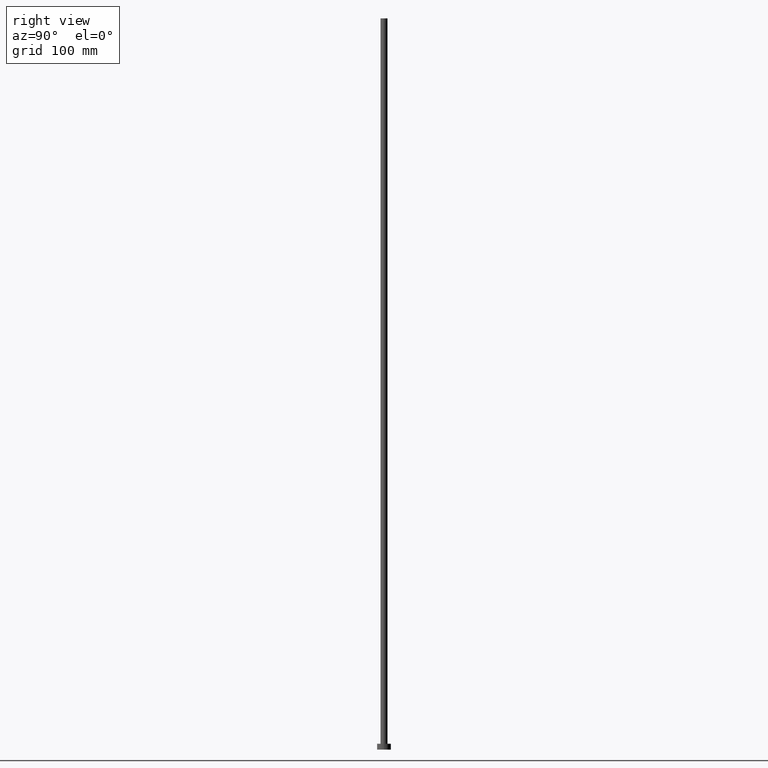
[diagram: clean part render]
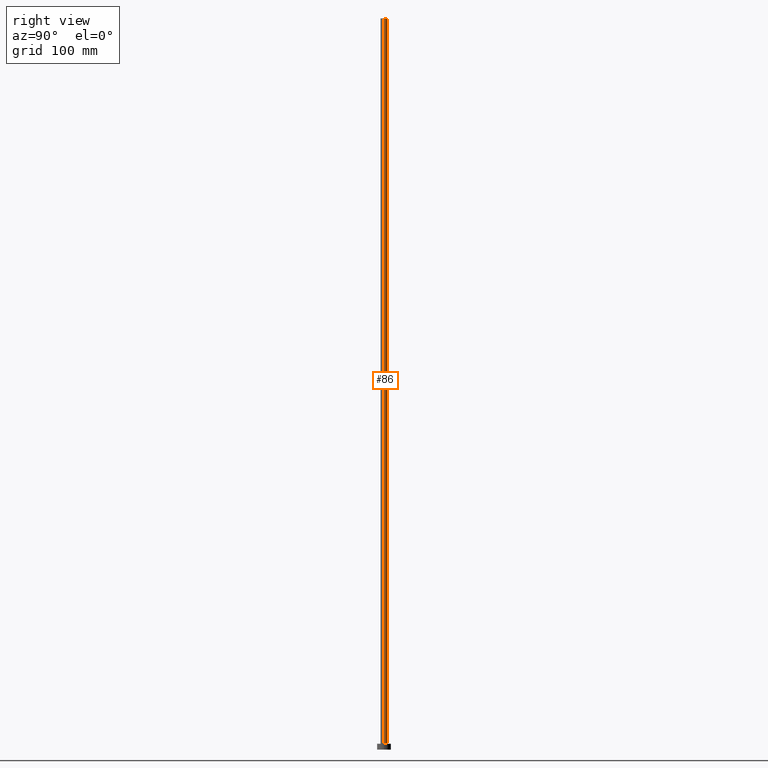
[diagram: same view with one face highlighted and labeled with its STEP entity id]
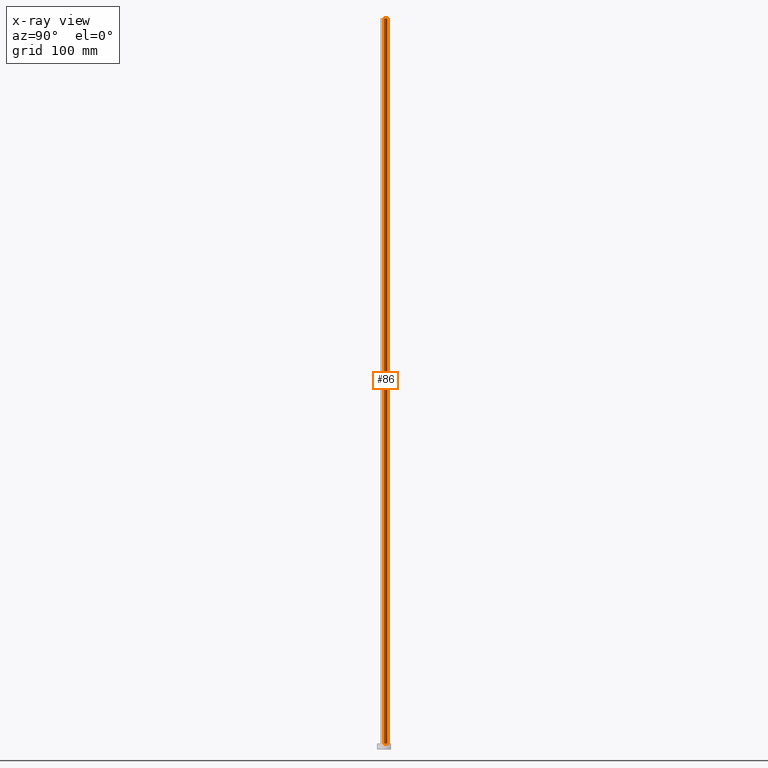
[diagram: x-ray of the same camera — body ghosted, the highlighted face saturated]
A machine part, right view. The second image highlights one B-rep face of the part: STEP entity #86.
The next image is the same camera in x-ray: the body ghosted, the highlighted face saturated — about 0% of this face is hidden behind the body in this view.
In plain terms, the highlighted cylindrical surface (edge-blend (fillet) strip) has radius 3 mm, axis along (-0, -0, -1).
Its self-contained STEP definition (entity closure, byte-faithful):
#3 = DIRECTION ( 'NONE',  ( -0.000000000000000000, -0.000000000000000000, -1.000000000000000000 ) ) ;
#13 = EDGE_CURVE ( 'NONE', #123, #151, #24, .T. ) ;
#15 = DIRECTION ( 'NONE',  ( 0.000000000000000000, 0.000000000000000000, 1.000000000000000000 ) ) ;
#22 = ORIENTED_EDGE ( 'NONE', *, *, #102, .T. ) ;
#23 = CARTESIAN_POINT ( 'NONE',  ( -3.000000000000000444, 0.000000000000000000, 630.0000000000000000 ) ) ;
#24 = LINE ( 'NONE', #23, #230 ) ;
#28 = AXIS2_PLACEMENT_3D ( 'NONE', #220, #167, #115 ) ;
#39 = CARTESIAN_POINT ( 'NONE',  ( -3.000000000000000444, 0.000000000000000000, 630.0000000000000000 ) ) ;
#40 = VERTEX_POINT ( 'NONE', #228 ) ;
#51 = CARTESIAN_POINT ( 'NONE',  ( 3.000000000000000444, 3.673940397442060361E-16, 5.000000000000000000 ) ) ;
#53 = LINE ( 'NONE', #55, #63 ) ;
#55 = CARTESIAN_POINT ( 'NONE',  ( 3.000000000000000444, 3.673940397442060361E-16, 630.0000000000000000 ) ) ;
#57 = ORIENTED_EDGE ( 'NONE', *, *, #101, .T. ) ;
#61 = CYLINDRICAL_SURFACE ( 'NONE', #214, 3.000000000000000444 ) ;
#63 = VECTOR ( 'NONE', #239, 1000.000000000000000 ) ;
#76 = CARTESIAN_POINT ( 'NONE',  ( 0.000000000000000000, 0.000000000000000000, 5.000000000000000000 ) ) ;
#84 = DIRECTION ( 'NONE',  ( -1.000000000000000000, 0.000000000000000000, 0.000000000000000000 ) ) ;
#86 = ADVANCED_FACE ( 'NONE', ( #226 ), #61, .T. ) ;
#101 = EDGE_CURVE ( 'NONE', #121, #151, #106, .T. ) ;
#102 = EDGE_CURVE ( 'NONE', #40, #121, #53, .T. ) ;
#106 = CIRCLE ( 'NONE', #251, 3.000000000000000444 ) ;
#115 = DIRECTION ( 'NONE',  ( 1.000000000000000000, 0.000000000000000000, 0.000000000000000000 ) ) ;
#121 = VERTEX_POINT ( 'NONE', #51 ) ;
#123 = VERTEX_POINT ( 'NONE', #39 ) ;
#131 = CARTESIAN_POINT ( 'NONE',  ( -3.000000000000000444, 0.000000000000000000, 5.000000000000000000 ) ) ;
#132 = EDGE_CURVE ( 'NONE', #40, #123, #175, .T. ) ;
#151 = VERTEX_POINT ( 'NONE', #131 ) ;
#152 = DIRECTION ( 'NONE',  ( -0.000000000000000000, -0.000000000000000000, -1.000000000000000000 ) ) ;
#167 = DIRECTION ( 'NONE',  ( 0.000000000000000000, 0.000000000000000000, 1.000000000000000000 ) ) ;
#168 = DIRECTION ( 'NONE',  ( 1.000000000000000000, 0.000000000000000000, 0.000000000000000000 ) ) ;
#174 = CARTESIAN_POINT ( 'NONE',  ( 0.000000000000000000, 0.000000000000000000, 630.0000000000000000 ) ) ;
#175 = CIRCLE ( 'NONE', #28, 3.000000000000000444 ) ;
#205 = EDGE_LOOP ( 'NONE', ( #250, #22, #57, #209 ) ) ;
#209 = ORIENTED_EDGE ( 'NONE', *, *, #13, .F. ) ;
#214 = AXIS2_PLACEMENT_3D ( 'NONE', #174, #3, #84 ) ;
#220 = CARTESIAN_POINT ( 'NONE',  ( 0.000000000000000000, 0.000000000000000000, 630.0000000000000000 ) ) ;
#226 = FACE_OUTER_BOUND ( 'NONE', #205, .T. ) ;
#228 = CARTESIAN_POINT ( 'NONE',  ( 3.000000000000000444, 3.673940397442060361E-16, 630.0000000000000000 ) ) ;
#230 = VECTOR ( 'NONE', #152, 1000.000000000000000 ) ;
#239 = DIRECTION ( 'NONE',  ( -0.000000000000000000, -0.000000000000000000, -1.000000000000000000 ) ) ;
#250 = ORIENTED_EDGE ( 'NONE', *, *, #132, .F. ) ;
#251 = AXIS2_PLACEMENT_3D ( 'NONE', #76, #15, #168 ) ;